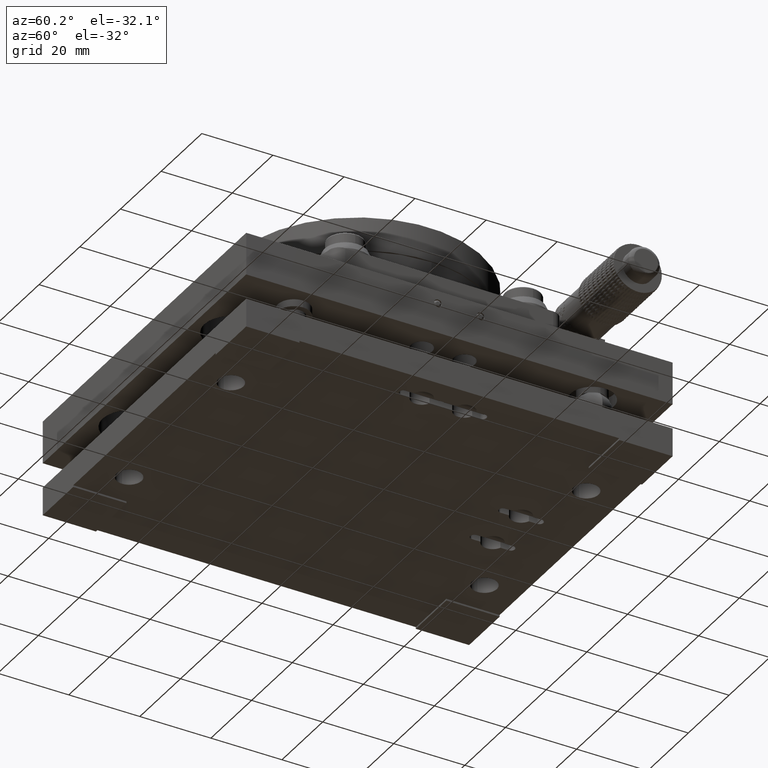
[diagram: clean part render]
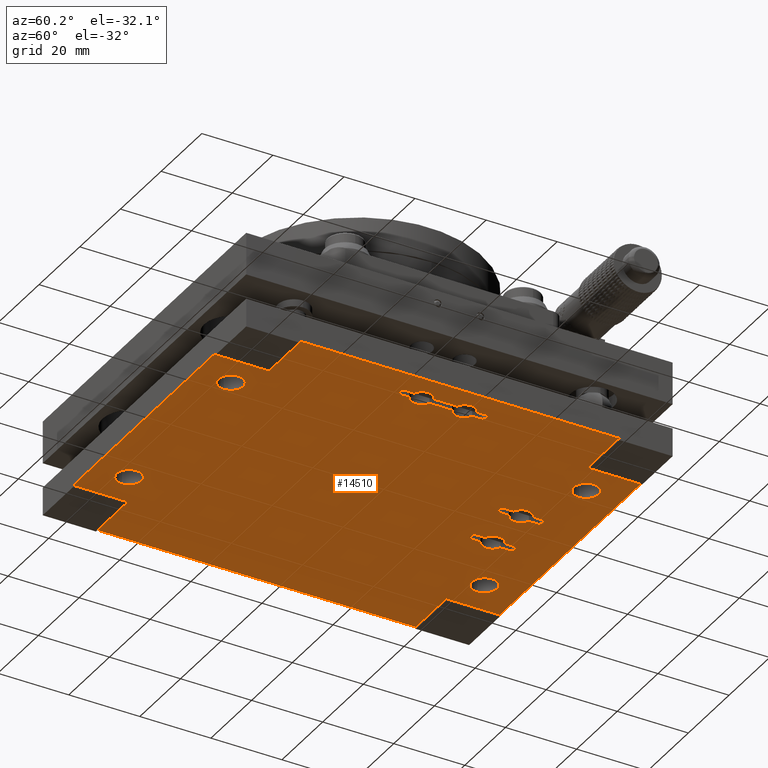
[diagram: same view with one face highlighted and labeled with its STEP entity id]
A machine part, auxiliary view. The second image highlights one B-rep face of the part: STEP entity #14510.
In plain terms, the highlighted planar face has unit normal (0, 0, -1).
Its self-contained STEP definition (entity closure, byte-faithful):
#8525=FACE_BOUND('',#27174,.T.);
#8526=FACE_BOUND('',#27175,.T.);
#8527=FACE_BOUND('',#27176,.T.);
#8528=FACE_BOUND('',#27177,.T.);
#8529=FACE_BOUND('',#27178,.T.);
#8530=FACE_BOUND('',#27179,.T.);
#8531=FACE_BOUND('',#27180,.T.);
#14510=ADVANCED_FACE('',(#20535,#8525,#8526,#8527,#8528,#8529,#8530,#8531),
#110278,.T.);
#20535=FACE_OUTER_BOUND('',#27173,.T.);
#27173=EDGE_LOOP('',(#60893,#60894,#60895,#60896,#60897,#60898,#60899,#60900,
#60901,#60902,#60903,#60904));
#27174=EDGE_LOOP('',(#60905,#60906,#60907,#60908,#60909,#60910,#60911,#60912,
#60913,#60914,#60915,#60916,#60917,#60918));
#27175=EDGE_LOOP('',(#60919,#60920,#60921,#60922,#60923,#60924,#60925,#60926,
#60927));
#27176=EDGE_LOOP('',(#60928,#60929));
#27177=EDGE_LOOP('',(#60930,#60931));
#27178=EDGE_LOOP('',(#60932,#60933));
#27179=EDGE_LOOP('',(#60934,#60935));
#27180=EDGE_LOOP('',(#60936,#60937,#60938,#60939,#60940,#60941,#60942,#60943,
#60944));
#60893=ORIENTED_EDGE('',*,*,#77994,.T.);
#60894=ORIENTED_EDGE('',*,*,#78018,.F.);
#60895=ORIENTED_EDGE('',*,*,#77997,.T.);
#60896=ORIENTED_EDGE('',*,*,#78001,.T.);
#60897=ORIENTED_EDGE('',*,*,#78019,.F.);
#60898=ORIENTED_EDGE('',*,*,#78004,.T.);
#60899=ORIENTED_EDGE('',*,*,#78008,.T.);
#60900=ORIENTED_EDGE('',*,*,#78020,.F.);
#60901=ORIENTED_EDGE('',*,*,#78011,.T.);
#60902=ORIENTED_EDGE('',*,*,#78015,.T.);
#60903=ORIENTED_EDGE('',*,*,#78021,.F.);
#60904=ORIENTED_EDGE('',*,*,#77990,.T.);
#60905=ORIENTED_EDGE('',*,*,#78022,.F.);
#60906=ORIENTED_EDGE('',*,*,#78109,.F.);
#60907=ORIENTED_EDGE('',*,*,#78117,.F.);
#60908=ORIENTED_EDGE('',*,*,#78023,.F.);
#60909=ORIENTED_EDGE('',*,*,#78039,.F.);
#60910=ORIENTED_EDGE('',*,*,#78048,.F.);
#60911=ORIENTED_EDGE('',*,*,#78024,.F.);
#60912=ORIENTED_EDGE('',*,*,#78051,.F.);
#60913=ORIENTED_EDGE('',*,*,#78025,.F.);
#60914=ORIENTED_EDGE('',*,*,#78043,.F.);
#60915=ORIENTED_EDGE('',*,*,#78026,.F.);
#60916=ORIENTED_EDGE('',*,*,#78114,.F.);
#60917=ORIENTED_EDGE('',*,*,#78027,.F.);
#60918=ORIENTED_EDGE('',*,*,#78142,.F.);
#60919=ORIENTED_EDGE('',*,*,#78028,.F.);
#60920=ORIENTED_EDGE('',*,*,#78123,.F.);
#60921=ORIENTED_EDGE('',*,*,#78130,.F.);
#60922=ORIENTED_EDGE('',*,*,#78029,.F.);
#60923=ORIENTED_EDGE('',*,*,#78055,.F.);
#60924=ORIENTED_EDGE('',*,*,#78030,.F.);
#60925=ORIENTED_EDGE('',*,*,#78126,.F.);
#60926=ORIENTED_EDGE('',*,*,#78031,.F.);
#60927=ORIENTED_EDGE('',*,*,#78136,.F.);
#60928=ORIENTED_EDGE('',*,*,#78104,.F.);
#60929=ORIENTED_EDGE('',*,*,#78103,.F.);
#60930=ORIENTED_EDGE('',*,*,#78100,.F.);
#60931=ORIENTED_EDGE('',*,*,#78099,.F.);
#60932=ORIENTED_EDGE('',*,*,#78096,.F.);
#60933=ORIENTED_EDGE('',*,*,#78095,.F.);
#60934=ORIENTED_EDGE('',*,*,#78092,.F.);
#60935=ORIENTED_EDGE('',*,*,#78091,.F.);
#60936=ORIENTED_EDGE('',*,*,#78032,.F.);
#60937=ORIENTED_EDGE('',*,*,#78070,.F.);
#60938=ORIENTED_EDGE('',*,*,#78077,.F.);
#60939=ORIENTED_EDGE('',*,*,#78033,.F.);
#60940=ORIENTED_EDGE('',*,*,#78132,.F.);
#60941=ORIENTED_EDGE('',*,*,#78034,.F.);
#60942=ORIENTED_EDGE('',*,*,#78072,.F.);
#60943=ORIENTED_EDGE('',*,*,#78035,.F.);
#60944=ORIENTED_EDGE('',*,*,#78062,.F.);
#77990=EDGE_CURVE('',#105749,#105750,#92881,.T.);
#77994=EDGE_CURVE('',#105750,#105753,#92885,.T.);
#77997=EDGE_CURVE('',#105755,#105756,#92888,.T.);
#78001=EDGE_CURVE('',#105756,#105759,#92892,.T.);
#78004=EDGE_CURVE('',#105761,#105762,#92895,.T.);
#78008=EDGE_CURVE('',#105762,#105765,#92899,.T.);
#78011=EDGE_CURVE('',#105767,#105768,#92902,.T.);
#78015=EDGE_CURVE('',#105768,#105771,#92906,.T.);
#78018=EDGE_CURVE('',#105755,#105753,#92909,.T.);
#78019=EDGE_CURVE('',#105761,#105759,#92910,.T.);
#78020=EDGE_CURVE('',#105767,#105765,#92911,.T.);
#78021=EDGE_CURVE('',#105749,#105771,#92912,.T.);
#78022=EDGE_CURVE('',#105773,#105774,#92913,.T.);
#78023=EDGE_CURVE('',#105777,#105776,#92914,.T.);
#78024=EDGE_CURVE('',#105780,#105779,#92915,.T.);
#78025=EDGE_CURVE('',#105782,#105781,#92916,.T.);
#78026=EDGE_CURVE('',#105784,#105783,#92917,.T.);
#78027=EDGE_CURVE('',#105786,#105785,#92918,.T.);
#78028=EDGE_CURVE('',#105787,#105788,#92919,.T.);
#78029=EDGE_CURVE('',#105791,#105790,#92920,.T.);
#78030=EDGE_CURVE('',#105793,#105792,#92921,.T.);
#78031=EDGE_CURVE('',#105795,#105794,#92922,.T.);
#78032=EDGE_CURVE('',#105804,#105805,#92923,.T.);
#78033=EDGE_CURVE('',#105808,#105807,#92924,.T.);
#78034=EDGE_CURVE('',#105810,#105809,#92925,.T.);
#78035=EDGE_CURVE('',#105812,#105811,#92926,.T.);
#78039=EDGE_CURVE('',#105778,#105777,#95078,.T.);
#78043=EDGE_CURVE('',#105783,#105782,#95080,.T.);
#78048=EDGE_CURVE('',#105779,#105778,#95083,.T.);
#78051=EDGE_CURVE('',#105781,#105780,#95084,.T.);
#78055=EDGE_CURVE('',#105792,#105791,#95086,.T.);
#78062=EDGE_CURVE('',#105805,#105812,#95088,.T.);
#78070=EDGE_CURVE('',#105806,#105804,#95093,.T.);
#78072=EDGE_CURVE('',#105811,#105810,#95095,.T.);
#78077=EDGE_CURVE('',#105807,#105806,#95098,.T.);
#78091=EDGE_CURVE('',#105803,#105802,#95100,.T.);
#78092=EDGE_CURVE('',#105802,#105803,#95101,.T.);
#78095=EDGE_CURVE('',#105801,#105800,#95103,.T.);
#78096=EDGE_CURVE('',#105800,#105801,#95104,.T.);
#78099=EDGE_CURVE('',#105799,#105798,#95106,.T.);
#78100=EDGE_CURVE('',#105798,#105799,#95107,.T.);
#78103=EDGE_CURVE('',#105797,#105796,#95109,.T.);
#78104=EDGE_CURVE('',#105796,#105797,#95110,.T.);
#78109=EDGE_CURVE('',#105775,#105773,#95114,.T.);
#78114=EDGE_CURVE('',#105785,#105784,#95117,.T.);
#78117=EDGE_CURVE('',#105776,#105775,#95119,.T.);
#78123=EDGE_CURVE('',#105789,#105787,#95123,.T.);
#78126=EDGE_CURVE('',#105794,#105793,#95125,.T.);
#78130=EDGE_CURVE('',#105790,#105789,#95128,.T.);
#78132=EDGE_CURVE('',#105809,#105808,#95129,.T.);
#78136=EDGE_CURVE('',#105788,#105795,#95131,.T.);
#78142=EDGE_CURVE('',#105774,#105786,#95133,.T.);
#92881=B_SPLINE_CURVE_WITH_KNOTS('',1,(#195237,#195238),.UNSPECIFIED.,.F.,
 .F.,(2,2),(-15.,0.),.UNSPECIFIED.);
#92885=B_SPLINE_CURVE_WITH_KNOTS('',1,(#195245,#195246),.UNSPECIFIED.,.F.,
 .F.,(2,2),(-15.,0.),.UNSPECIFIED.);
#92888=B_SPLINE_CURVE_WITH_KNOTS('',1,(#195251,#195252),.UNSPECIFIED.,.F.,
 .F.,(2,2),(-15.,0.),.UNSPECIFIED.);
#92892=B_SPLINE_CURVE_WITH_KNOTS('',1,(#195259,#195260),.UNSPECIFIED.,.F.,
 .F.,(2,2),(-15.,0.),.UNSPECIFIED.);
#92895=B_SPLINE_CURVE_WITH_KNOTS('',1,(#195265,#195266),.UNSPECIFIED.,.F.,
 .F.,(2,2),(-15.,0.),.UNSPECIFIED.);
#92899=B_SPLINE_CURVE_WITH_KNOTS('',1,(#195273,#195274),.UNSPECIFIED.,.F.,
 .F.,(2,2),(-15.,0.),.UNSPECIFIED.);
#92902=B_SPLINE_CURVE_WITH_KNOTS('',1,(#195279,#195280),.UNSPECIFIED.,.F.,
 .F.,(2,2),(-15.,0.),.UNSPECIFIED.);
#92906=B_SPLINE_CURVE_WITH_KNOTS('',1,(#195287,#195288),.UNSPECIFIED.,.F.,
 .F.,(2,2),(-15.,0.),.UNSPECIFIED.);
#92909=B_SPLINE_CURVE_WITH_KNOTS('',1,(#195293,#195294),.UNSPECIFIED.,.F.,
 .F.,(2,2),(-70.,0.),.UNSPECIFIED.);
#92910=B_SPLINE_CURVE_WITH_KNOTS('',1,(#195295,#195296),.UNSPECIFIED.,.F.,
 .F.,(2,2),(-90.,0.),.UNSPECIFIED.);
#92911=B_SPLINE_CURVE_WITH_KNOTS('',1,(#195297,#195298),.UNSPECIFIED.,.F.,
 .F.,(2,2),(-70.,0.),.UNSPECIFIED.);
#92912=B_SPLINE_CURVE_WITH_KNOTS('',1,(#195299,#195300),.UNSPECIFIED.,.F.,
 .F.,(2,2),(-90.,0.),.UNSPECIFIED.);
#92913=B_SPLINE_CURVE_WITH_KNOTS('',1,(#195301,#195302),.UNSPECIFIED.,.F.,
 .F.,(2,2),(-2.3589428526094,0.),.UNSPECIFIED.);
#92914=B_SPLINE_CURVE_WITH_KNOTS('',1,(#195303,#195304),.UNSPECIFIED.,.F.,
 .F.,(2,2),(-6.41788570521879,0.),.UNSPECIFIED.);
#92915=B_SPLINE_CURVE_WITH_KNOTS('',1,(#195305,#195306),.UNSPECIFIED.,.F.,
 .F.,(2,2),(-2.3589428526094,0.),.UNSPECIFIED.);
#92916=B_SPLINE_CURVE_WITH_KNOTS('',1,(#195307,#195308),.UNSPECIFIED.,.F.,
 .F.,(2,2),(-2.3589428526094,0.),.UNSPECIFIED.);
#92917=B_SPLINE_CURVE_WITH_KNOTS('',1,(#195309,#195310),.UNSPECIFIED.,.F.,
 .F.,(2,2),(-6.41788570521879,0.),.UNSPECIFIED.);
#92918=B_SPLINE_CURVE_WITH_KNOTS('',1,(#195311,#195312),.UNSPECIFIED.,.F.,
 .F.,(2,2),(-2.3589428526094,0.),.UNSPECIFIED.);
#92919=B_SPLINE_CURVE_WITH_KNOTS('',1,(#195313,#195314),.UNSPECIFIED.,.F.,
 .F.,(2,2),(-2.358942852609,0.),.UNSPECIFIED.);
#92920=B_SPLINE_CURVE_WITH_KNOTS('',1,(#195315,#195316),.UNSPECIFIED.,.F.,
 .F.,(2,2),(-2.3589428526094,0.),.UNSPECIFIED.);
#92921=B_SPLINE_CURVE_WITH_KNOTS('',1,(#195317,#195318),.UNSPECIFIED.,.F.,
 .F.,(2,2),(-2.3589428526094,0.),.UNSPECIFIED.);
#92922=B_SPLINE_CURVE_WITH_KNOTS('',1,(#195319,#195320),.UNSPECIFIED.,.F.,
 .F.,(2,2),(-2.358942852609,0.),.UNSPECIFIED.);
#92923=B_SPLINE_CURVE_WITH_KNOTS('',1,(#195321,#195322),.UNSPECIFIED.,.F.,
 .F.,(2,2),(-2.358942852609,0.),.UNSPECIFIED.);
#92924=B_SPLINE_CURVE_WITH_KNOTS('',1,(#195323,#195324),.UNSPECIFIED.,.F.,
 .F.,(2,2),(-2.3589428526094,0.),.UNSPECIFIED.);
#92925=B_SPLINE_CURVE_WITH_KNOTS('',1,(#195325,#195326),.UNSPECIFIED.,.F.,
 .F.,(2,2),(-2.3589428526094,0.),.UNSPECIFIED.);
#92926=B_SPLINE_CURVE_WITH_KNOTS('',1,(#195327,#195328),.UNSPECIFIED.,.F.,
 .F.,(2,2),(-2.358942852609,0.),.UNSPECIFIED.);
#95078=(
BOUNDED_CURVE()
B_SPLINE_CURVE(2,(#195338,#195339,#195340),.UNSPECIFIED.,.F.,.F.)
B_SPLINE_CURVE_WITH_KNOTS((3,3),(0.,3.5861181564416),.UNSPECIFIED.)
CURVE()
GEOMETRIC_REPRESENTATION_ITEM()
RATIONAL_B_SPLINE_CURVE((1.,0.826639784509152,1.))
REPRESENTATION_ITEM('')
);
#95080=(
BOUNDED_CURVE()
B_SPLINE_CURVE(2,(#195348,#195349,#195350,#195351,#195352),
 .UNSPECIFIED.,.F.,.F.)
B_SPLINE_CURVE_WITH_KNOTS((3,2,3),(0.,3.5861181564416,7.1722363128832),
 .UNSPECIFIED.)
CURVE()
GEOMETRIC_REPRESENTATION_ITEM()
RATIONAL_B_SPLINE_CURVE((1.,0.82663978450915,1.,0.82663978450915,1.))
REPRESENTATION_ITEM('')
);
#95083=(
BOUNDED_CURVE()
B_SPLINE_CURVE(2,(#195363,#195364,#195365),.UNSPECIFIED.,.F.,.F.)
B_SPLINE_CURVE_WITH_KNOTS((3,3),(0.,3.5861181564416),.UNSPECIFIED.)
CURVE()
GEOMETRIC_REPRESENTATION_ITEM()
RATIONAL_B_SPLINE_CURVE((1.,0.826639784509152,1.))
REPRESENTATION_ITEM('')
);
#95084=(
BOUNDED_CURVE()
B_SPLINE_CURVE(2,(#195370,#195371,#195372,#195373,#195374),
 .UNSPECIFIED.,.F.,.F.)
B_SPLINE_CURVE_WITH_KNOTS((3,2,3),(0.,1.72787595947438,3.45575191894875),
 .UNSPECIFIED.)
CURVE()
GEOMETRIC_REPRESENTATION_ITEM()
RATIONAL_B_SPLINE_CURVE((1.,0.707106781186548,1.,0.707106781186548,1.))
REPRESENTATION_ITEM('')
);
#95086=(
BOUNDED_CURVE()
B_SPLINE_CURVE(2,(#195384,#195385,#195386,#195387,#195388),
 .UNSPECIFIED.,.F.,.F.)
B_SPLINE_CURVE_WITH_KNOTS((3,2,3),(0.,1.72787595947438,3.45575191894875),
 .UNSPECIFIED.)
CURVE()
GEOMETRIC_REPRESENTATION_ITEM()
RATIONAL_B_SPLINE_CURVE((1.,0.70710678118655,1.,0.70710678118655,1.))
REPRESENTATION_ITEM('')
);
#95088=(
BOUNDED_CURVE()
B_SPLINE_CURVE(2,(#195404,#195405,#195406,#195407,#195408),
 .UNSPECIFIED.,.F.,.F.)
B_SPLINE_CURVE_WITH_KNOTS((3,2,3),(0.,1.72787595947438,3.45575191894875),
 .UNSPECIFIED.)
CURVE()
GEOMETRIC_REPRESENTATION_ITEM()
RATIONAL_B_SPLINE_CURVE((1.,0.707106781186548,1.,0.707106781186548,1.))
REPRESENTATION_ITEM('')
);
#95093=(
BOUNDED_CURVE()
B_SPLINE_CURVE(2,(#195429,#195430,#195431),.UNSPECIFIED.,.F.,.F.)
B_SPLINE_CURVE_WITH_KNOTS((3,3),(0.,3.5861181564419),.UNSPECIFIED.)
CURVE()
GEOMETRIC_REPRESENTATION_ITEM()
RATIONAL_B_SPLINE_CURVE((1.,0.826639784509191,1.))
REPRESENTATION_ITEM('')
);
#95095=(
BOUNDED_CURVE()
B_SPLINE_CURVE(2,(#195435,#195436,#195437,#195438,#195439),
 .UNSPECIFIED.,.F.,.F.)
B_SPLINE_CURVE_WITH_KNOTS((3,2,3),(0.,3.58611815644186,7.17223631288372),
 .UNSPECIFIED.)
CURVE()
GEOMETRIC_REPRESENTATION_ITEM()
RATIONAL_B_SPLINE_CURVE((1.,0.82663978450915,1.,0.82663978450915,1.))
REPRESENTATION_ITEM('')
);
#95098=(
BOUNDED_CURVE()
B_SPLINE_CURVE(2,(#195450,#195451,#195452),.UNSPECIFIED.,.F.,.F.)
B_SPLINE_CURVE_WITH_KNOTS((3,3),(0.,3.5861181564416),.UNSPECIFIED.)
CURVE()
GEOMETRIC_REPRESENTATION_ITEM()
RATIONAL_B_SPLINE_CURVE((1.,0.826639784509156,1.))
REPRESENTATION_ITEM('')
);
#95100=(
BOUNDED_CURVE()
B_SPLINE_CURVE(2,(#195482,#195483,#195484,#195485,#195486),
 .UNSPECIFIED.,.F.,.F.)
B_SPLINE_CURVE_WITH_KNOTS((3,2,3),(0.,5.49778714378214,10.9955742875643),
 .UNSPECIFIED.)
CURVE()
GEOMETRIC_REPRESENTATION_ITEM()
RATIONAL_B_SPLINE_CURVE((1.,0.707106781186548,1.,0.707106781186548,1.))
REPRESENTATION_ITEM('')
);
#95101=(
BOUNDED_CURVE()
B_SPLINE_CURVE(2,(#195487,#195488,#195489,#195490,#195491),
 .UNSPECIFIED.,.F.,.F.)
B_SPLINE_CURVE_WITH_KNOTS((3,2,3),(0.,5.49778714378214,10.9955742875643),
 .UNSPECIFIED.)
CURVE()
GEOMETRIC_REPRESENTATION_ITEM()
RATIONAL_B_SPLINE_CURVE((1.,0.707106781186548,1.,0.707106781186548,1.))
REPRESENTATION_ITEM('')
);
#95103=(
BOUNDED_CURVE()
B_SPLINE_CURVE(2,(#195499,#195500,#195501,#195502,#195503),
 .UNSPECIFIED.,.F.,.F.)
B_SPLINE_CURVE_WITH_KNOTS((3,2,3),(0.,5.49778714378214,10.9955742875643),
 .UNSPECIFIED.)
CURVE()
GEOMETRIC_REPRESENTATION_ITEM()
RATIONAL_B_SPLINE_CURVE((1.,0.707106781186548,1.,0.707106781186548,1.))
REPRESENTATION_ITEM('')
);
#95104=(
BOUNDED_CURVE()
B_SPLINE_CURVE(2,(#195504,#195505,#195506,#195507,#195508),
 .UNSPECIFIED.,.F.,.F.)
B_SPLINE_CURVE_WITH_KNOTS((3,2,3),(0.,5.49778714378214,10.9955742875643),
 .UNSPECIFIED.)
CURVE()
GEOMETRIC_REPRESENTATION_ITEM()
RATIONAL_B_SPLINE_CURVE((1.,0.707106781186548,1.,0.707106781186548,1.))
REPRESENTATION_ITEM('')
);
#95106=(
BOUNDED_CURVE()
B_SPLINE_CURVE(2,(#195516,#195517,#195518,#195519,#195520),
 .UNSPECIFIED.,.F.,.F.)
B_SPLINE_CURVE_WITH_KNOTS((3,2,3),(0.,5.49778714378214,10.9955742875643),
 .UNSPECIFIED.)
CURVE()
GEOMETRIC_REPRESENTATION_ITEM()
RATIONAL_B_SPLINE_CURVE((1.,0.707106781186548,1.,0.707106781186548,1.))
REPRESENTATION_ITEM('')
);
#95107=(
BOUNDED_CURVE()
B_SPLINE_CURVE(2,(#195521,#195522,#195523,#195524,#195525),
 .UNSPECIFIED.,.F.,.F.)
B_SPLINE_CURVE_WITH_KNOTS((3,2,3),(0.,5.49778714378214,10.9955742875643),
 .UNSPECIFIED.)
CURVE()
GEOMETRIC_REPRESENTATION_ITEM()
RATIONAL_B_SPLINE_CURVE((1.,0.707106781186548,1.,0.707106781186548,1.))
REPRESENTATION_ITEM('')
);
#95109=(
BOUNDED_CURVE()
B_SPLINE_CURVE(2,(#195533,#195534,#195535,#195536,#195537),
 .UNSPECIFIED.,.F.,.F.)
B_SPLINE_CURVE_WITH_KNOTS((3,2,3),(0.,5.49778714378214,10.9955742875643),
 .UNSPECIFIED.)
CURVE()
GEOMETRIC_REPRESENTATION_ITEM()
RATIONAL_B_SPLINE_CURVE((1.,0.707106781186548,1.,0.707106781186548,1.))
REPRESENTATION_ITEM('')
);
#95110=(
BOUNDED_CURVE()
B_SPLINE_CURVE(2,(#195538,#195539,#195540,#195541,#195542),
 .UNSPECIFIED.,.F.,.F.)
B_SPLINE_CURVE_WITH_KNOTS((3,2,3),(0.,5.49778714378214,10.9955742875643),
 .UNSPECIFIED.)
CURVE()
GEOMETRIC_REPRESENTATION_ITEM()
RATIONAL_B_SPLINE_CURVE((1.,0.707106781186548,1.,0.707106781186548,1.))
REPRESENTATION_ITEM('')
);
#95114=(
BOUNDED_CURVE()
B_SPLINE_CURVE(2,(#195554,#195555,#195556),.UNSPECIFIED.,.F.,.F.)
B_SPLINE_CURVE_WITH_KNOTS((3,3),(0.,3.5861181564416),.UNSPECIFIED.)
CURVE()
GEOMETRIC_REPRESENTATION_ITEM()
RATIONAL_B_SPLINE_CURVE((1.,0.826639784509152,1.))
REPRESENTATION_ITEM('')
);
#95117=(
BOUNDED_CURVE()
B_SPLINE_CURVE(2,(#195567,#195568,#195569,#195570,#195571),
 .UNSPECIFIED.,.F.,.F.)
B_SPLINE_CURVE_WITH_KNOTS((3,2,3),(0.,3.58611815644162,7.17223631288324),
 .UNSPECIFIED.)
CURVE()
GEOMETRIC_REPRESENTATION_ITEM()
RATIONAL_B_SPLINE_CURVE((1.,0.826639784509146,1.,0.826639784509146,1.))
REPRESENTATION_ITEM('')
);
#95119=(
BOUNDED_CURVE()
B_SPLINE_CURVE(2,(#195577,#195578,#195579),.UNSPECIFIED.,.F.,.F.)
B_SPLINE_CURVE_WITH_KNOTS((3,3),(0.,3.58611815644175),.UNSPECIFIED.)
CURVE()
GEOMETRIC_REPRESENTATION_ITEM()
RATIONAL_B_SPLINE_CURVE((1.,0.826639784509123,1.))
REPRESENTATION_ITEM('')
);
#95123=(
BOUNDED_CURVE()
B_SPLINE_CURVE(2,(#195593,#195594,#195595),.UNSPECIFIED.,.F.,.F.)
B_SPLINE_CURVE_WITH_KNOTS((3,3),(0.,3.5861181564419),.UNSPECIFIED.)
CURVE()
GEOMETRIC_REPRESENTATION_ITEM()
RATIONAL_B_SPLINE_CURVE((1.,0.826639784509191,1.))
REPRESENTATION_ITEM('')
);
#95125=(
BOUNDED_CURVE()
B_SPLINE_CURVE(2,(#195601,#195602,#195603,#195604,#195605),
 .UNSPECIFIED.,.F.,.F.)
B_SPLINE_CURVE_WITH_KNOTS((3,2,3),(0.,3.58611815644185,7.17223631288371),
 .UNSPECIFIED.)
CURVE()
GEOMETRIC_REPRESENTATION_ITEM()
RATIONAL_B_SPLINE_CURVE((1.,0.826639784509152,1.,0.826639784509152,1.))
REPRESENTATION_ITEM('')
);
#95128=(
BOUNDED_CURVE()
B_SPLINE_CURVE(2,(#195614,#195615,#195616),.UNSPECIFIED.,.F.,.F.)
B_SPLINE_CURVE_WITH_KNOTS((3,3),(0.,3.5861181564416),.UNSPECIFIED.)
CURVE()
GEOMETRIC_REPRESENTATION_ITEM()
RATIONAL_B_SPLINE_CURVE((1.,0.826639784509156,1.))
REPRESENTATION_ITEM('')
);
#95129=(
BOUNDED_CURVE()
B_SPLINE_CURVE(2,(#195619,#195620,#195621,#195622,#195623),
 .UNSPECIFIED.,.F.,.F.)
B_SPLINE_CURVE_WITH_KNOTS((3,2,3),(0.,1.72787595947438,3.45575191894875),
 .UNSPECIFIED.)
CURVE()
GEOMETRIC_REPRESENTATION_ITEM()
RATIONAL_B_SPLINE_CURVE((1.,0.70710678118655,1.,0.70710678118655,1.))
REPRESENTATION_ITEM('')
);
#95131=(
BOUNDED_CURVE()
B_SPLINE_CURVE(2,(#195633,#195634,#195635,#195636,#195637),
 .UNSPECIFIED.,.F.,.F.)
B_SPLINE_CURVE_WITH_KNOTS((3,2,3),(0.,1.72787595947438,3.45575191894875),
 .UNSPECIFIED.)
CURVE()
GEOMETRIC_REPRESENTATION_ITEM()
RATIONAL_B_SPLINE_CURVE((1.,0.707106781186548,1.,0.707106781186548,1.))
REPRESENTATION_ITEM('')
);
#95133=(
BOUNDED_CURVE()
B_SPLINE_CURVE(2,(#195651,#195652,#195653,#195654,#195655),
 .UNSPECIFIED.,.F.,.F.)
B_SPLINE_CURVE_WITH_KNOTS((3,2,3),(0.,1.72787595947438,3.45575191894875),
 .UNSPECIFIED.)
CURVE()
GEOMETRIC_REPRESENTATION_ITEM()
RATIONAL_B_SPLINE_CURVE((1.,0.707106781186548,1.,0.707106781186548,1.))
REPRESENTATION_ITEM('')
);
#105749=VERTEX_POINT('',#194993);
#105750=VERTEX_POINT('',#194994);
#105753=VERTEX_POINT('',#194997);
#105755=VERTEX_POINT('',#194999);
#105756=VERTEX_POINT('',#195000);
#105759=VERTEX_POINT('',#195003);
#105761=VERTEX_POINT('',#195005);
#105762=VERTEX_POINT('',#195006);
#105765=VERTEX_POINT('',#195009);
#105767=VERTEX_POINT('',#195011);
#105768=VERTEX_POINT('',#195012);
#105771=VERTEX_POINT('',#195015);
#105773=VERTEX_POINT('',#195017);
#105774=VERTEX_POINT('',#195018);
#105775=VERTEX_POINT('',#195019);
#105776=VERTEX_POINT('',#195020);
#105777=VERTEX_POINT('',#195021);
#105778=VERTEX_POINT('',#195022);
#105779=VERTEX_POINT('',#195023);
#105780=VERTEX_POINT('',#195024);
#105781=VERTEX_POINT('',#195025);
#105782=VERTEX_POINT('',#195026);
#105783=VERTEX_POINT('',#195027);
#105784=VERTEX_POINT('',#195028);
#105785=VERTEX_POINT('',#195029);
#105786=VERTEX_POINT('',#195030);
#105787=VERTEX_POINT('',#195031);
#105788=VERTEX_POINT('',#195032);
#105789=VERTEX_POINT('',#195033);
#105790=VERTEX_POINT('',#195034);
#105791=VERTEX_POINT('',#195035);
#105792=VERTEX_POINT('',#195036);
#105793=VERTEX_POINT('',#195037);
#105794=VERTEX_POINT('',#195038);
#105795=VERTEX_POINT('',#195039);
#105796=VERTEX_POINT('',#195040);
#105797=VERTEX_POINT('',#195041);
#105798=VERTEX_POINT('',#195042);
#105799=VERTEX_POINT('',#195043);
#105800=VERTEX_POINT('',#195044);
#105801=VERTEX_POINT('',#195045);
#105802=VERTEX_POINT('',#195046);
#105803=VERTEX_POINT('',#195047);
#105804=VERTEX_POINT('',#195048);
#105805=VERTEX_POINT('',#195049);
#105806=VERTEX_POINT('',#195050);
#105807=VERTEX_POINT('',#195051);
#105808=VERTEX_POINT('',#195052);
#105809=VERTEX_POINT('',#195053);
#105810=VERTEX_POINT('',#195054);
#105811=VERTEX_POINT('',#195055);
#105812=VERTEX_POINT('',#195056);
#110278=PLANE('',#116314);
#116314=AXIS2_PLACEMENT_3D('',#194874,#121462,$);
#121462=DIRECTION('',(0.,0.,-1.));
#194874=CARTESIAN_POINT('',(-65.3698945992675,-76.5277156503218,0.500101170970486));
#194993=CARTESIAN_POINT('',(-55.2498945992675,40.5922843496782,0.500101170970486));
#194994=CARTESIAN_POINT('',(-40.2498945992675,40.5922843496782,0.500101170970486));
#194997=CARTESIAN_POINT('',(-40.2498945992675,55.5922843496782,0.500101170970486));
#194999=CARTESIAN_POINT('',(29.7501054007325,55.5922843496782,0.500101170970486));
#195000=CARTESIAN_POINT('',(29.7501054007325,40.5922843496782,0.500101170970486));
#195003=CARTESIAN_POINT('',(44.7501054007325,40.5922843496782,0.500101170970486));
#195005=CARTESIAN_POINT('',(44.7501054007325,-49.4077156503218,0.500101170970486));
#195006=CARTESIAN_POINT('',(29.7501054007325,-49.4077156503218,0.500101170970486));
#195009=CARTESIAN_POINT('',(29.7501054007325,-64.4077156503218,0.500101170970486));
#195011=CARTESIAN_POINT('',(-40.2498945992675,-64.4077156503218,0.500101170970486));
#195012=CARTESIAN_POINT('',(-40.2498945992675,-49.4077156503218,0.500101170970486));
#195015=CARTESIAN_POINT('',(-55.2498945992675,-49.4077156503218,0.500101170970486));
#195017=CARTESIAN_POINT('',(35.6501054007325,4.38334149706884,0.500101170970486));
#195018=CARTESIAN_POINT('',(35.6501054007325,6.74228434967824,0.500101170970486));
#195019=CARTESIAN_POINT('',(33.7501054007325,1.59228434967824,0.500101170970486));
#195020=CARTESIAN_POINT('',(35.6501054007327,-1.19877279771237,0.500101170970486));
#195021=CARTESIAN_POINT('',(35.6501054007325,-7.61665850293116,0.500101170970486));
#195022=CARTESIAN_POINT('',(33.7501054007325,-10.4077156503218,0.500101170970486));
#195023=CARTESIAN_POINT('',(35.6501054007325,-13.1987727977124,0.500101170970486));
#195024=CARTESIAN_POINT('',(35.6501054007325,-15.5577156503218,0.500101170970486));
#195025=CARTESIAN_POINT('',(37.8501054007325,-15.5577156503218,0.500101170970486));
#195026=CARTESIAN_POINT('',(37.8501054007325,-13.1987727977124,0.500101170970486));
#195027=CARTESIAN_POINT('',(37.8501054007325,-7.61665850293116,0.500101170970486));
#195028=CARTESIAN_POINT('',(37.8501054007325,-1.19877279771237,0.500101170970486));
#195029=CARTESIAN_POINT('',(37.8501054007325,4.38334149706884,0.500101170970486));
#195030=CARTESIAN_POINT('',(37.8501054007325,6.74228434967824,0.500101170970486));
#195031=CARTESIAN_POINT('',(-13.3498945992675,40.3833414970692,0.500101170970486));
#195032=CARTESIAN_POINT('',(-13.3498945992675,42.7422843496782,0.500101170970486));
#195033=CARTESIAN_POINT('',(-15.2498945992675,37.5922843496782,0.500101170970486));
#195034=CARTESIAN_POINT('',(-13.3498945992675,34.8012272022876,0.500101170970486));
#195035=CARTESIAN_POINT('',(-13.3498945992675,32.4422843496782,0.500101170970486));
#195036=CARTESIAN_POINT('',(-11.1498945992675,32.4422843496782,0.500101170970486));
#195037=CARTESIAN_POINT('',(-11.1498945992675,34.8012272022876,0.500101170970486));
#195038=CARTESIAN_POINT('',(-11.1498945992675,40.3833414970692,0.500101170970486));
#195039=CARTESIAN_POINT('',(-11.1498945992675,42.7422843496782,0.500101170970486));
#195040=CARTESIAN_POINT('',(-33.7498945992675,-54.4077156503218,0.500101170970486));
#195041=CARTESIAN_POINT('',(-26.7498945992675,-54.4077156503218,0.500101170970486));
#195042=CARTESIAN_POINT('',(16.2501054007325,-54.4077156503218,0.500101170970486));
#195043=CARTESIAN_POINT('',(23.2501054007325,-54.4077156503218,0.500101170970486));
#195044=CARTESIAN_POINT('',(-33.7498945992675,45.5922843496782,0.500101170970486));
#195045=CARTESIAN_POINT('',(-26.7498945992675,45.5922843496782,0.500101170970486));
#195046=CARTESIAN_POINT('',(16.2501054007325,45.5922843496782,0.500101170970486));
#195047=CARTESIAN_POINT('',(23.2501054007325,45.5922843496782,0.500101170970486));
#195048=CARTESIAN_POINT('',(0.650105400732528,40.3833414970692,0.500101170970486));
#195049=CARTESIAN_POINT('',(0.650105400732542,42.7422843496782,0.500101170970486));
#195050=CARTESIAN_POINT('',(-1.24989459926746,37.5922843496782,0.500101170970486));
#195051=CARTESIAN_POINT('',(0.650105400732528,34.8012272022876,0.500101170970486));
#195052=CARTESIAN_POINT('',(0.650105400732542,32.4422843496782,0.500101170970486));
#195053=CARTESIAN_POINT('',(2.85010540073253,32.4422843496782,0.500101170970486));
#195054=CARTESIAN_POINT('',(2.85010540073254,34.8012272022876,0.500101170970486));
#195055=CARTESIAN_POINT('',(2.85010540073254,40.3833414970692,0.500101170970486));
#195056=CARTESIAN_POINT('',(2.85010540073253,42.7422843496782,0.500101170970486));
#195237=CARTESIAN_POINT('',(-55.2498945992675,40.5922843496782,0.500101170970486));
#195238=CARTESIAN_POINT('',(-40.2498945992675,40.5922843496782,0.500101170970486));
#195245=CARTESIAN_POINT('',(-40.2498945992675,40.5922843496782,0.500101170970486));
#195246=CARTESIAN_POINT('',(-40.2498945992675,55.5922843496782,0.500101170970486));
#195251=CARTESIAN_POINT('',(29.7501054007325,55.5922843496782,0.500101170970486));
#195252=CARTESIAN_POINT('',(29.7501054007325,40.5922843496782,0.500101170970486));
#195259=CARTESIAN_POINT('',(29.7501054007325,40.5922843496782,0.500101170970486));
#195260=CARTESIAN_POINT('',(44.7501054007325,40.5922843496782,0.500101170970486));
#195265=CARTESIAN_POINT('',(44.7501054007325,-49.4077156503218,0.500101170970486));
#195266=CARTESIAN_POINT('',(29.7501054007325,-49.4077156503218,0.500101170970486));
#195273=CARTESIAN_POINT('',(29.7501054007325,-49.4077156503218,0.500101170970486));
#195274=CARTESIAN_POINT('',(29.7501054007325,-64.4077156503218,0.500101170970486));
#195279=CARTESIAN_POINT('',(-40.2498945992675,-64.4077156503218,0.500101170970486));
#195280=CARTESIAN_POINT('',(-40.2498945992675,-49.4077156503218,0.500101170970486));
#195287=CARTESIAN_POINT('',(-40.2498945992675,-49.4077156503218,0.500101170970486));
#195288=CARTESIAN_POINT('',(-55.2498945992675,-49.4077156503218,0.500101170970486));
#195293=CARTESIAN_POINT('',(29.7501054007325,55.5922843496782,0.500101170970486));
#195294=CARTESIAN_POINT('',(-40.2498945992675,55.5922843496782,0.500101170970486));
#195295=CARTESIAN_POINT('',(44.7501054007325,-49.4077156503218,0.500101170970486));
#195296=CARTESIAN_POINT('',(44.7501054007325,40.5922843496782,0.500101170970486));
#195297=CARTESIAN_POINT('',(-40.2498945992675,-64.4077156503218,0.500101170970486));
#195298=CARTESIAN_POINT('',(29.7501054007325,-64.4077156503218,0.500101170970486));
#195299=CARTESIAN_POINT('',(-55.2498945992675,40.5922843496782,0.500101170970486));
#195300=CARTESIAN_POINT('',(-55.2498945992675,-49.4077156503218,0.500101170970486));
#195301=CARTESIAN_POINT('',(35.6501054007325,4.38334149706884,0.500101170970486));
#195302=CARTESIAN_POINT('',(35.6501054007325,6.74228434967824,0.500101170970486));
#195303=CARTESIAN_POINT('',(35.6501054007325,-7.61665850293116,0.500101170970486));
#195304=CARTESIAN_POINT('',(35.6501054007327,-1.19877279771237,0.500101170970486));
#195305=CARTESIAN_POINT('',(35.6501054007325,-15.5577156503218,0.500101170970486));
#195306=CARTESIAN_POINT('',(35.6501054007325,-13.1987727977124,0.500101170970486));
#195307=CARTESIAN_POINT('',(37.8501054007325,-13.1987727977124,0.500101170970486));
#195308=CARTESIAN_POINT('',(37.8501054007325,-15.5577156503218,0.500101170970486));
#195309=CARTESIAN_POINT('',(37.8501054007325,-1.19877279771237,0.500101170970486));
#195310=CARTESIAN_POINT('',(37.8501054007325,-7.61665850293116,0.500101170970486));
#195311=CARTESIAN_POINT('',(37.8501054007325,6.74228434967824,0.500101170970486));
#195312=CARTESIAN_POINT('',(37.8501054007325,4.38334149706884,0.500101170970486));
#195313=CARTESIAN_POINT('',(-13.3498945992675,40.3833414970692,0.500101170970486));
#195314=CARTESIAN_POINT('',(-13.3498945992675,42.7422843496782,0.500101170970486));
#195315=CARTESIAN_POINT('',(-13.3498945992675,32.4422843496782,0.500101170970486));
#195316=CARTESIAN_POINT('',(-13.3498945992675,34.8012272022876,0.500101170970486));
#195317=CARTESIAN_POINT('',(-11.1498945992675,34.8012272022876,0.500101170970486));
#195318=CARTESIAN_POINT('',(-11.1498945992675,32.4422843496782,0.500101170970486));
#195319=CARTESIAN_POINT('',(-11.1498945992675,42.7422843496782,0.500101170970486));
#195320=CARTESIAN_POINT('',(-11.1498945992675,40.3833414970692,0.500101170970486));
#195321=CARTESIAN_POINT('',(0.650105400732528,40.3833414970692,0.500101170970486));
#195322=CARTESIAN_POINT('',(0.650105400732542,42.7422843496782,0.500101170970486));
#195323=CARTESIAN_POINT('',(0.650105400732542,32.4422843496782,0.500101170970486));
#195324=CARTESIAN_POINT('',(0.650105400732528,34.8012272022876,0.500101170970486));
#195325=CARTESIAN_POINT('',(2.85010540073254,34.8012272022876,0.500101170970486));
#195326=CARTESIAN_POINT('',(2.85010540073253,32.4422843496782,0.500101170970486));
#195327=CARTESIAN_POINT('',(2.85010540073253,42.7422843496782,0.500101170970486));
#195328=CARTESIAN_POINT('',(2.85010540073254,40.3833414970692,0.500101170970486));
#195338=CARTESIAN_POINT('',(33.7501054007325,-10.4077156503218,0.500101170970486));
#195339=CARTESIAN_POINT('',(33.7501054007325,-8.3654787132067,0.500101170970486));
#195340=CARTESIAN_POINT('',(35.6501054007325,-7.61665850293116,0.500101170970486));
#195348=CARTESIAN_POINT('',(37.8501054007325,-7.61665850293116,0.500101170970486));
#195349=CARTESIAN_POINT('',(39.7501054007325,-8.36547871320668,0.500101170970486));
#195350=CARTESIAN_POINT('',(39.7501054007326,-10.4077156503218,0.500101170970486));
#195351=CARTESIAN_POINT('',(39.7501054007326,-12.4499525874368,0.500101170970486));
#195352=CARTESIAN_POINT('',(37.8501054007325,-13.1987727977124,0.500101170970486));
#195363=CARTESIAN_POINT('',(35.6501054007325,-13.1987727977124,0.500101170970486));
#195364=CARTESIAN_POINT('',(33.7501054007325,-12.4499525874368,0.500101170970486));
#195365=CARTESIAN_POINT('',(33.7501054007325,-10.4077156503218,0.500101170970486));
#195370=CARTESIAN_POINT('',(37.8501054007325,-15.5577156503218,0.500101170970486));
#195371=CARTESIAN_POINT('',(37.8501054007325,-16.6577156503218,0.500101170970486));
#195372=CARTESIAN_POINT('',(36.7501054007325,-16.6577156503218,0.500101170970486));
#195373=CARTESIAN_POINT('',(35.6501054007325,-16.6577156503218,0.500101170970486));
#195374=CARTESIAN_POINT('',(35.6501054007325,-15.5577156503218,0.500101170970486));
#195384=CARTESIAN_POINT('',(-11.1498945992675,32.4422843496782,0.500101170970486));
#195385=CARTESIAN_POINT('',(-11.1498945992675,31.3422843496782,0.500101170970486));
#195386=CARTESIAN_POINT('',(-12.2498945992675,31.3422843496782,0.500101170970486));
#195387=CARTESIAN_POINT('',(-13.3498945992675,31.3422843496782,0.500101170970486));
#195388=CARTESIAN_POINT('',(-13.3498945992675,32.4422843496782,0.500101170970486));
#195404=CARTESIAN_POINT('',(0.650105400732542,42.7422843496782,0.500101170970486));
#195405=CARTESIAN_POINT('',(0.650105400732542,43.8422843496782,0.500101170970486));
#195406=CARTESIAN_POINT('',(1.75010540073254,43.8422843496782,0.500101170970486));
#195407=CARTESIAN_POINT('',(2.85010540073253,43.8422843496782,0.500101170970486));
#195408=CARTESIAN_POINT('',(2.85010540073253,42.7422843496782,0.500101170970486));
#195429=CARTESIAN_POINT('',(-1.24989459926746,37.5922843496782,0.500101170970486));
#195430=CARTESIAN_POINT('',(-1.24989459926746,39.6345212867934,0.500101170970486));
#195431=CARTESIAN_POINT('',(0.650105400732533,40.3833414970692,0.500101170970486));
#195435=CARTESIAN_POINT('',(2.85010540073254,40.3833414970692,0.500101170970486));
#195436=CARTESIAN_POINT('',(4.75010540073269,39.6345212867937,0.500101170970486));
#195437=CARTESIAN_POINT('',(4.75010540073269,37.5922843496784,0.500101170970486));
#195438=CARTESIAN_POINT('',(4.75010540073269,35.5500474125632,0.500101170970486));
#195439=CARTESIAN_POINT('',(2.85010540073254,34.8012272022876,0.500101170970486));
#195450=CARTESIAN_POINT('',(0.650105400732526,34.8012272022876,0.500101170970486));
#195451=CARTESIAN_POINT('',(-1.24989459926746,35.5500474125632,0.500101170970486));
#195452=CARTESIAN_POINT('',(-1.24989459926746,37.5922843496782,0.500101170970486));
#195482=CARTESIAN_POINT('',(23.2501054007325,45.5922843496782,0.500101170970486));
#195483=CARTESIAN_POINT('',(23.2501054007325,42.0922843496782,0.500101170970486));
#195484=CARTESIAN_POINT('',(19.7501054007325,42.0922843496782,0.500101170970486));
#195485=CARTESIAN_POINT('',(16.2501054007325,42.0922843496782,0.500101170970486));
#195486=CARTESIAN_POINT('',(16.2501054007325,45.5922843496782,0.500101170970486));
#195487=CARTESIAN_POINT('',(16.2501054007325,45.5922843496782,0.500101170970486));
#195488=CARTESIAN_POINT('',(16.2501054007325,49.0922843496782,0.500101170970486));
#195489=CARTESIAN_POINT('',(19.7501054007325,49.0922843496782,0.500101170970486));
#195490=CARTESIAN_POINT('',(23.2501054007325,49.0922843496782,0.500101170970486));
#195491=CARTESIAN_POINT('',(23.2501054007325,45.5922843496782,0.500101170970486));
#195499=CARTESIAN_POINT('',(-26.7498945992675,45.5922843496782,0.500101170970486));
#195500=CARTESIAN_POINT('',(-26.7498945992675,42.0922843496782,0.500101170970486));
#195501=CARTESIAN_POINT('',(-30.2498945992675,42.0922843496782,0.500101170970486));
#195502=CARTESIAN_POINT('',(-33.7498945992675,42.0922843496782,0.500101170970486));
#195503=CARTESIAN_POINT('',(-33.7498945992675,45.5922843496782,0.500101170970486));
#195504=CARTESIAN_POINT('',(-33.7498945992675,45.5922843496782,0.500101170970486));
#195505=CARTESIAN_POINT('',(-33.7498945992675,49.0922843496782,0.500101170970486));
#195506=CARTESIAN_POINT('',(-30.2498945992675,49.0922843496782,0.500101170970486));
#195507=CARTESIAN_POINT('',(-26.7498945992675,49.0922843496782,0.500101170970486));
#195508=CARTESIAN_POINT('',(-26.7498945992675,45.5922843496782,0.500101170970486));
#195516=CARTESIAN_POINT('',(23.2501054007325,-54.4077156503218,0.500101170970486));
#195517=CARTESIAN_POINT('',(23.2501054007325,-57.9077156503218,0.500101170970486));
#195518=CARTESIAN_POINT('',(19.7501054007325,-57.9077156503218,0.500101170970486));
#195519=CARTESIAN_POINT('',(16.2501054007325,-57.9077156503218,0.500101170970486));
#195520=CARTESIAN_POINT('',(16.2501054007325,-54.4077156503218,0.500101170970486));
#195521=CARTESIAN_POINT('',(16.2501054007325,-54.4077156503218,0.500101170970486));
#195522=CARTESIAN_POINT('',(16.2501054007325,-50.9077156503218,0.500101170970486));
#195523=CARTESIAN_POINT('',(19.7501054007325,-50.9077156503218,0.500101170970486));
#195524=CARTESIAN_POINT('',(23.2501054007325,-50.9077156503218,0.500101170970486));
#195525=CARTESIAN_POINT('',(23.2501054007325,-54.4077156503218,0.500101170970486));
#195533=CARTESIAN_POINT('',(-26.7498945992675,-54.4077156503218,0.500101170970486));
#195534=CARTESIAN_POINT('',(-26.7498945992675,-57.9077156503218,0.500101170970486));
#195535=CARTESIAN_POINT('',(-30.2498945992675,-57.9077156503218,0.500101170970486));
#195536=CARTESIAN_POINT('',(-33.7498945992675,-57.9077156503218,0.500101170970486));
#195537=CARTESIAN_POINT('',(-33.7498945992675,-54.4077156503218,0.500101170970486));
#195538=CARTESIAN_POINT('',(-33.7498945992675,-54.4077156503218,0.500101170970486));
#195539=CARTESIAN_POINT('',(-33.7498945992675,-50.9077156503218,0.500101170970486));
#195540=CARTESIAN_POINT('',(-30.2498945992675,-50.9077156503218,0.500101170970486));
#195541=CARTESIAN_POINT('',(-26.7498945992675,-50.9077156503218,0.500101170970486));
#195542=CARTESIAN_POINT('',(-26.7498945992675,-54.4077156503218,0.500101170970486));
#195554=CARTESIAN_POINT('',(33.7501054007325,1.59228434967824,0.500101170970486));
#195555=CARTESIAN_POINT('',(33.7501054007325,3.6345212867933,0.500101170970486));
#195556=CARTESIAN_POINT('',(35.6501054007325,4.38334149706884,0.500101170970486));
#195567=CARTESIAN_POINT('',(37.8501054007325,4.38334149706885,0.500101170970486));
#195568=CARTESIAN_POINT('',(39.7501054007326,3.63452128679334,0.500101170970486));
#195569=CARTESIAN_POINT('',(39.7501054007326,1.59228434967824,0.500101170970486));
#195570=CARTESIAN_POINT('',(39.7501054007326,-0.449952587436849,0.500101170970486));
#195571=CARTESIAN_POINT('',(37.8501054007325,-1.19877279771237,0.500101170970486));
#195577=CARTESIAN_POINT('',(35.6501054007327,-1.19877279771236,0.500101170970486));
#195578=CARTESIAN_POINT('',(33.7501054007325,-0.449952587436963,0.500101170970486));
#195579=CARTESIAN_POINT('',(33.7501054007325,1.59228434967824,0.500101170970486));
#195593=CARTESIAN_POINT('',(-15.2498945992675,37.5922843496782,0.500101170970486));
#195594=CARTESIAN_POINT('',(-15.2498945992675,39.6345212867934,0.500101170970486));
#195595=CARTESIAN_POINT('',(-13.3498945992675,40.3833414970692,0.500101170970486));
#195601=CARTESIAN_POINT('',(-11.1498945992675,40.3833414970692,0.500101170970486));
#195602=CARTESIAN_POINT('',(-9.24989459926732,39.6345212867936,0.500101170970486));
#195603=CARTESIAN_POINT('',(-9.24989459926732,37.5922843496784,0.500101170970486));
#195604=CARTESIAN_POINT('',(-9.24989459926732,35.5500474125632,0.500101170970486));
#195605=CARTESIAN_POINT('',(-11.1498945992675,34.8012272022876,0.500101170970486));
#195614=CARTESIAN_POINT('',(-13.3498945992675,34.8012272022876,0.500101170970486));
#195615=CARTESIAN_POINT('',(-15.2498945992675,35.5500474125632,0.500101170970486));
#195616=CARTESIAN_POINT('',(-15.2498945992675,37.5922843496782,0.500101170970486));
#195619=CARTESIAN_POINT('',(2.85010540073253,32.4422843496782,0.500101170970486));
#195620=CARTESIAN_POINT('',(2.85010540073252,31.3422843496782,0.500101170970486));
#195621=CARTESIAN_POINT('',(1.75010540073253,31.3422843496782,0.500101170970486));
#195622=CARTESIAN_POINT('',(0.650105400732542,31.3422843496782,0.500101170970486));
#195623=CARTESIAN_POINT('',(0.650105400732542,32.4422843496782,0.500101170970486));
#195633=CARTESIAN_POINT('',(-13.3498945992675,42.7422843496782,0.500101170970486));
#195634=CARTESIAN_POINT('',(-13.3498945992675,43.8422843496782,0.500101170970486));
#195635=CARTESIAN_POINT('',(-12.2498945992675,43.8422843496782,0.500101170970486));
#195636=CARTESIAN_POINT('',(-11.1498945992675,43.8422843496782,0.500101170970486));
#195637=CARTESIAN_POINT('',(-11.1498945992675,42.7422843496782,0.500101170970486));
#195651=CARTESIAN_POINT('',(35.6501054007325,6.74228434967824,0.500101170970486));
#195652=CARTESIAN_POINT('',(35.6501054007325,7.84228434967824,0.500101170970486));
#195653=CARTESIAN_POINT('',(36.7501054007325,7.84228434967824,0.500101170970486));
#195654=CARTESIAN_POINT('',(37.8501054007325,7.84228434967824,0.500101170970486));
#195655=CARTESIAN_POINT('',(37.8501054007325,6.74228434967824,0.500101170970486));